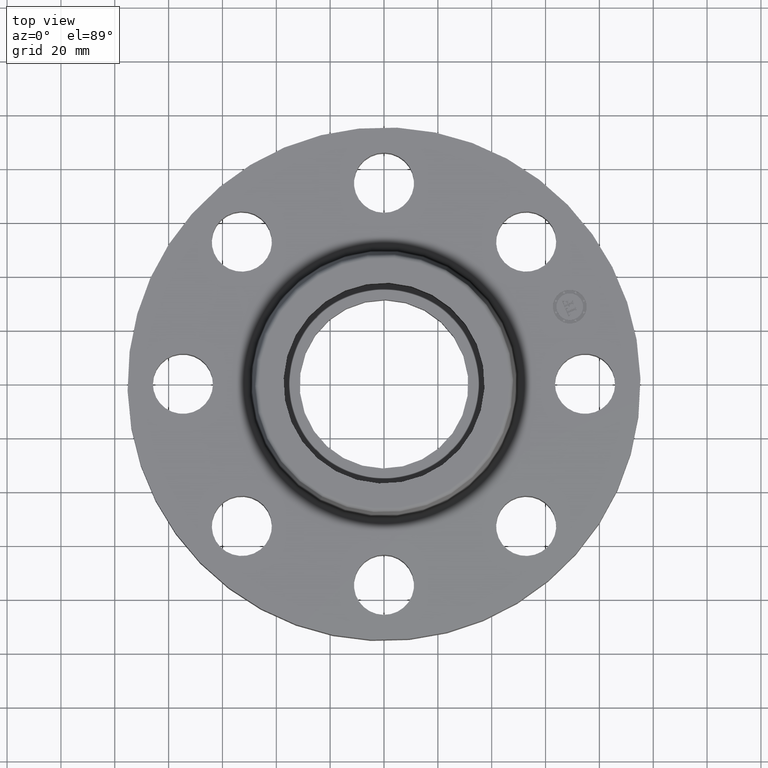
[diagram: clean part render]
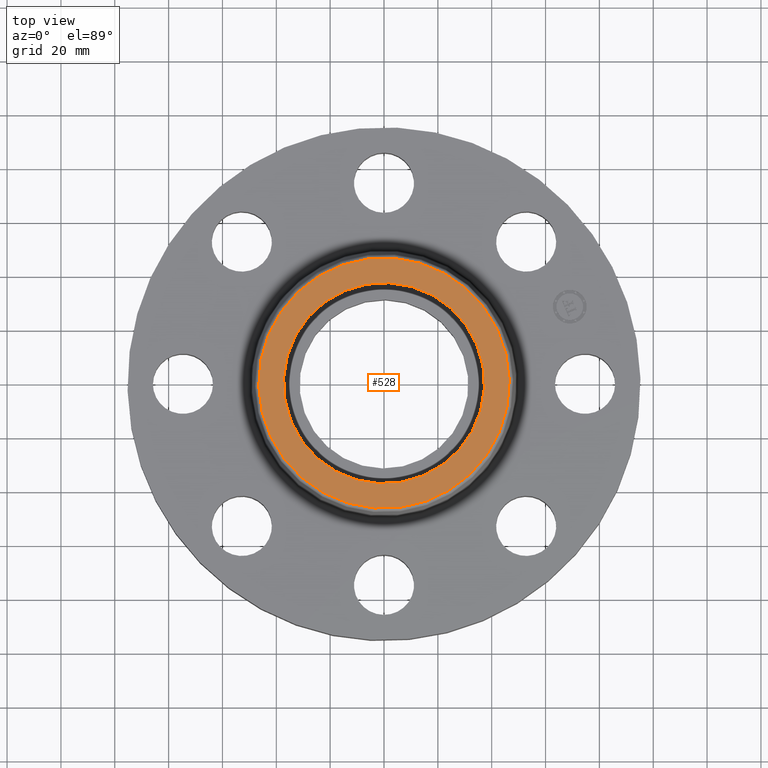
[diagram: same view with one face highlighted and labeled with its STEP entity id]
A machine part, top view. The second image highlights one B-rep face of the part: STEP entity #528.
In plain terms, the highlighted planar face has unit normal (0, 0, -1).
Its self-contained STEP definition (entity closure, byte-faithful):
#472=AXIS2_PLACEMENT_3D('Circle Axis2P3D',#470,#471,$) ;
#491=AXIS2_PLACEMENT_3D('Circle Axis2P3D',#489,#490,$) ;
#504=AXIS2_PLACEMENT_3D('Plane Axis2P3D',#501,#502,#503) ;
#512=AXIS2_PLACEMENT_3D('Circle Axis2P3D',#510,#511,$) ;
#521=AXIS2_PLACEMENT_3D('Circle Axis2P3D',#519,#520,$) ;
#467=CARTESIAN_POINT('Vertex',(0.878063334648,1.60728415296,1.44000000001)) ;
#470=CARTESIAN_POINT('Axis2P3D Location',(0.,0.,1.44000000001)) ;
#474=CARTESIAN_POINT('Vertex',(-0.878063334648,-1.60728415296,1.44000000001)) ;
#489=CARTESIAN_POINT('Axis2P3D Location',(0.,0.,1.44000000001)) ;
#501=CARTESIAN_POINT('Axis2P3D Location',(0.,1.83149053178,1.44000000001)) ;
#510=CARTESIAN_POINT('Axis2P3D Location',(3.49676543189E-017,0.,1.44000000001)) ;
#514=CARTESIAN_POINT('Vertex',(-1.29004636598,0.704755541751,1.44000000001)) ;
#516=CARTESIAN_POINT('Vertex',(1.29004636598,-0.704755541751,1.44000000001)) ;
#519=CARTESIAN_POINT('Axis2P3D Location',(-1.74838271595E-016,5.59482469102E-016,1.44000000001)) ;
#471=DIRECTION('Axis2P3D Direction',(0.,0.,-0.0393700787402)) ;
#490=DIRECTION('Axis2P3D Direction',(0.,0.,-0.0393700787402)) ;
#502=DIRECTION('Axis2P3D Direction',(0.,0.,-0.0393700787402)) ;
#503=DIRECTION('Axis2P3D XDirection',(0.0393700787402,0.,0.)) ;
#511=DIRECTION('Axis2P3D Direction',(0.,0.,-0.0393700787402)) ;
#520=DIRECTION('Axis2P3D Direction',(0.,0.,-0.0393700787402)) ;
#507=ORIENTED_EDGE('',*,*,#476,.F.) ;
#508=ORIENTED_EDGE('',*,*,#493,.F.) ;
#525=ORIENTED_EDGE('',*,*,#518,.T.) ;
#526=ORIENTED_EDGE('',*,*,#523,.T.) ;
#527=FACE_BOUND('',#524,.T.) ;
#528=ADVANCED_FACE('PartBody',(#509,#527),#505,.F.) ;
#473=CIRCLE('generated circle',#472,1.83149053178) ;
#492=CIRCLE('generated circle',#491,1.83149053178) ;
#513=CIRCLE('generated circle',#512,1.47000000001) ;
#522=CIRCLE('generated circle',#521,1.47000000001) ;
#476=EDGE_CURVE('',#468,#475,#473,.T.) ;
#493=EDGE_CURVE('',#475,#468,#492,.T.) ;
#518=EDGE_CURVE('',#515,#517,#513,.T.) ;
#523=EDGE_CURVE('',#517,#515,#522,.T.) ;
#506=EDGE_LOOP('',(#507,#508)) ;
#524=EDGE_LOOP('',(#525,#526)) ;
#509=FACE_OUTER_BOUND('',#506,.T.) ;
#505=PLANE('',#504) ;
#468=VERTEX_POINT('',#467) ;
#475=VERTEX_POINT('',#474) ;
#515=VERTEX_POINT('',#514) ;
#517=VERTEX_POINT('',#516) ;